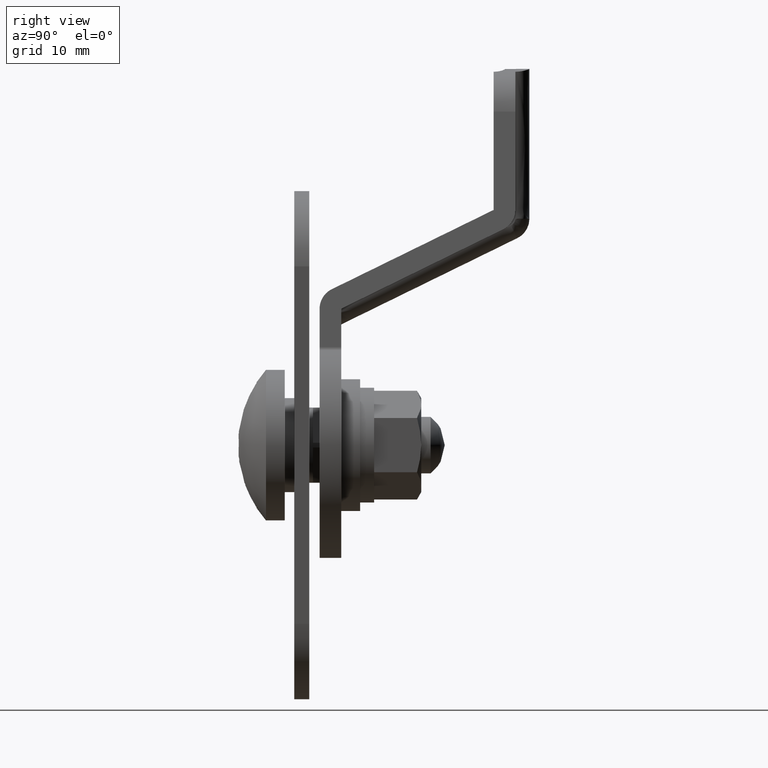
[diagram: clean part render]
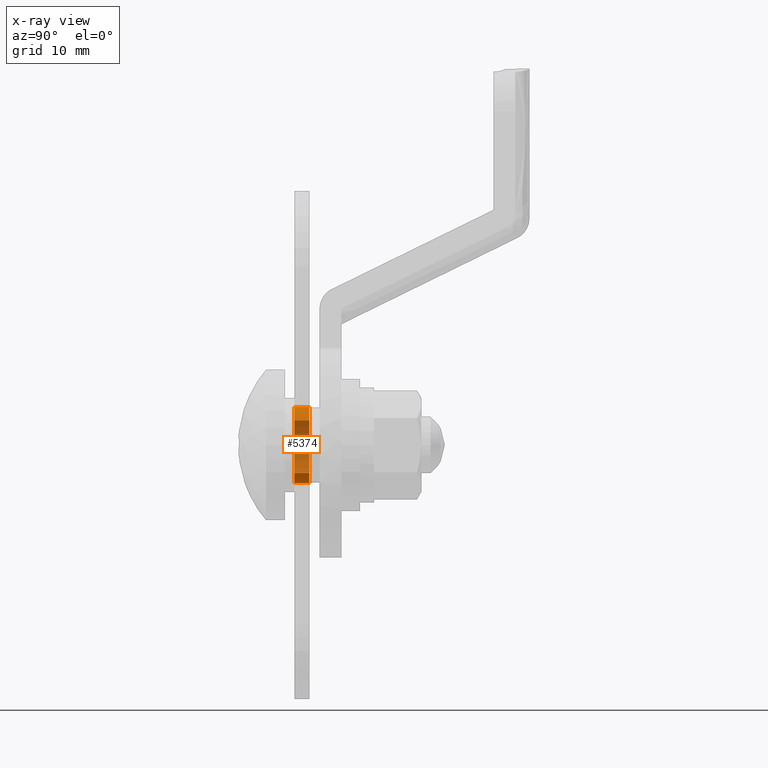
[diagram: x-ray — body ghosted, one internal face saturated and labeled with its STEP entity id]
A machine part, right view, then the same camera in x-ray: the body is ghosted and one INTERNAL B-rep face — a face not visible from any outside direction — is saturated and labeled: STEP entity #5374.
In plain terms, the highlighted face is a freeform B-spline surface patch.
Its self-contained STEP definition (entity closure, byte-faithful):
#5222=CARTESIAN_POINT('',(3.092400353908882,0.039999774999999,2.615255255447202));
#5223=CARTESIAN_POINT('',(3.017552872087634,0.039999774999999,2.703758424991023));
#5224=CARTESIAN_POINT('',(2.937766202599764,0.039999774999999,2.787836031559702));
#5225=CARTESIAN_POINT('',(0.149930171040061,0.039999774999999,5.725602234159466));
#5226=CARTESIAN_POINT('',(-2.787836031559702,0.039999774999999,2.937766202599764));
#5227=CARTESIAN_POINT('',(-5.725602234159466,0.039999774999999,0.149930171040061));
#5228=CARTESIAN_POINT('',(-2.937766202599764,0.039999774999999,-2.787836031559702));
#5229=CARTESIAN_POINT('',(-0.149930171040061,0.039999774999999,-5.725602234159466));
#5230=CARTESIAN_POINT('',(2.787836031559702,0.039999774999999,-2.937766202599764));
#5231=CARTESIAN_POINT('',(3.092400353908882,-1.640990769374965,2.615255255447202));
#5232=CARTESIAN_POINT('',(3.017552872087634,-1.640990769374965,2.703758424991023));
#5233=CARTESIAN_POINT('',(2.937766202599764,-1.640990769374964,2.787836031559702));
#5234=CARTESIAN_POINT('',(0.149930171040061,-1.640990769374964,5.725602234159466));
#5235=CARTESIAN_POINT('',(-2.787836031559702,-1.640990769374964,2.937766202599764));
#5236=CARTESIAN_POINT('',(-5.725602234159466,-1.640990769374964,0.149930171040061));
#5237=CARTESIAN_POINT('',(-2.937766202599764,-1.640990769374964,-2.787836031559702));
#5238=CARTESIAN_POINT('',(-0.149930171040061,-1.640990769374964,-5.725602234159466));
#5239=CARTESIAN_POINT('',(2.787836031559702,-1.640990769374964,-2.937766202599764));
#5247=(BOUNDED_SURFACE()B_SPLINE_SURFACE(2,1,((#5222,#5231),(#5223,#5232),(#5224,#5233),(#5225,#5234),(#5226,#5235),(#5227,#5236),(#5228,#5237),(#5229,#5238),(#5230,#5239)),.UNSPECIFIED.,.F.,.F.,.U.)B_SPLINE_SURFACE_WITH_KNOTS((3,2,2,2,3),(2,2),(0.0,0.268410388417766,6.978670098861904,13.688929809306041,20.399189519750180),(0.0,1.0),.UNSPECIFIED.)GEOMETRIC_REPRESENTATION_ITEM()RATIONAL_B_SPLINE_SURFACE(((0.977505800795127,0.977505800795127),(0.988284271247462,0.988284271247462),(1.0,1.0),(0.707106781186548,0.707106781186548),(1.0,1.0),(0.707106781186548,0.707106781186548),(1.0,1.0),(0.707106781186548,0.707106781186548),(1.0,1.0)))REPRESENTATION_ITEM('')SURFACE());
#5248=CARTESIAN_POINT('',(3.092400484543958,-1.599991000000631,2.615255344986193));
#5249=VERTEX_POINT('',#5248);
#5250=CARTESIAN_POINT('',(0.0,-1.599990999999965,4.050000000000000));
#5251=VERTEX_POINT('',#5250);
#5252=CARTESIAN_POINT('',(3.092400484543958,-1.599991000000631,2.615255344986193));
#5253=CARTESIAN_POINT('',(2.879450463511448,-1.599991000000588,2.867201637805676));
#5254=CARTESIAN_POINT('',(2.513455534628931,-1.599991000000501,3.205643752623646));
#5255=CARTESIAN_POINT('',(1.877003888556455,-1.599991000000373,3.607656000382701));
#5256=CARTESIAN_POINT('',(1.099462235144810,-1.599991000000200,3.943158492366766));
#5257=CARTESIAN_POINT('',(0.421533467174322,-1.599991000000055,4.050213329466186));
#5258=CARTESIAN_POINT('',(0.0,-1.599990999999965,4.050000000000000));
#5259=B_SPLINE_CURVE_WITH_KNOTS('',3,(#5252,#5253,#5254,#5255,#5256,#5257,#5258),.UNSPECIFIED.,.F.,.U.,(4,1,1,1,4),(0.000000023080737,0.989627527674797,1.484443801501332,2.254149022901001,3.518673672374912),.UNSPECIFIED.);
#5260=EDGE_CURVE('',#5249,#5251,#5259,.T.);
#5261=ORIENTED_EDGE('',*,*,#5260,.T.);
#5262=CARTESIAN_POINT('',(-4.049999999999949,-1.599990999999965,-0.000000639136269));
#5263=VERTEX_POINT('',#5262);
#5264=CARTESIAN_POINT('',(0.0,-1.599990999999965,4.050000000000000));
#5265=CARTESIAN_POINT('',(-0.314774181988511,-1.599990999999964,4.050062645675340));
#5266=CARTESIAN_POINT('',(-0.861454541847088,-1.599990999999967,3.985933744480716));
#5267=CARTESIAN_POINT('',(-1.603535380286522,-1.599990999999964,3.740766554754877));
#5268=CARTESIAN_POINT('',(-2.278139149217246,-1.599990999999965,3.380227175433728));
#5269=CARTESIAN_POINT('',(-2.870828241984392,-1.599990999999975,2.893817393189305));
#5270=CARTESIAN_POINT('',(-3.345502506040711,-1.599990999999957,2.315373141670689));
#5271=CARTESIAN_POINT('',(-3.660138199431569,-1.599990999999972,1.767776444814357));
#5272=CARTESIAN_POINT('',(-3.957708864991862,-1.599990999999964,1.010485527771871));
#5273=CARTESIAN_POINT('',(-4.050196407394374,-1.599990999999965,0.414203455855034));
#5274=CARTESIAN_POINT('',(-4.049999999999949,-1.599990999999965,-0.000000639136269));
#5275=B_SPLINE_CURVE_WITH_KNOTS('',3,(#5264,#5265,#5266,#5267,#5268,#5269,#5270,#5271,#5272,#5273,#5274),.UNSPECIFIED.,.F.,.U.,(4,1,1,1,1,1,1,1,4),(0.000000070980157,0.944313055946179,1.640143833672003,2.335974185389155,3.230562816715836,3.926395951291294,4.572516989498781,5.119233933469779,6.361765400877429),.UNSPECIFIED.);
#5276=EDGE_CURVE('',#5251,#5263,#5275,.T.);
#5277=ORIENTED_EDGE('',*,*,#5276,.T.);
#5278=CARTESIAN_POINT('',(0.0,-1.599990999999965,-4.050000000000000));
#5279=VERTEX_POINT('',#5278);
#5280=CARTESIAN_POINT('',(-4.049999999999949,-1.599990999999965,-0.000000639136269));
#5281=CARTESIAN_POINT('',(-4.050021377162549,-1.599990999999965,-0.265066795188676));
#5282=CARTESIAN_POINT('',(-3.989669675933455,-1.599990999999967,-0.878058234504779));
#5283=CARTESIAN_POINT('',(-3.706834513284169,-1.599990999999963,-1.717005494734092));
#5284=CARTESIAN_POINT('',(-3.191544699875011,-1.599990999999965,-2.553211640489213));
#5285=CARTESIAN_POINT('',(-2.588707740704343,-1.599990999999979,-3.156125099174831));
#5286=CARTESIAN_POINT('',(-1.889291668312245,-1.599990999999938,-3.604906772169243));
#5287=CARTESIAN_POINT('',(-1.076747036564646,-1.599990999999990,-3.947423221746329));
#5288=CARTESIAN_POINT('',(-0.414202610406967,-1.599990999999956,-4.050203531190827));
#5289=CARTESIAN_POINT('',(0.0,-1.599990999999965,-4.050000000000000));
#5290=B_SPLINE_CURVE_WITH_KNOTS('',3,(#5280,#5281,#5282,#5283,#5284,#5285,#5286,#5287,#5288,#5289),.UNSPECIFIED.,.F.,.U.,(4,1,1,1,1,1,1,4),(0.000000071200660,0.795207521116857,1.838952461712017,2.634173546756636,3.727595044182834,4.373706819607634,5.119233353555915,6.361764680417384),.UNSPECIFIED.);
#5291=EDGE_CURVE('',#5263,#5279,#5290,.T.);
#5292=ORIENTED_EDGE('',*,*,#5291,.T.);
#5293=CARTESIAN_POINT('',(2.787835964500129,-1.599990999996057,-2.937766046260736));
#5294=VERTEX_POINT('',#5293);
#5295=CARTESIAN_POINT('',(0.0,-1.599990999999965,-4.050000000000000));
#5296=CARTESIAN_POINT('',(0.272248477397850,-1.599990999999583,-4.050019538906583));
#5297=CARTESIAN_POINT('',(0.880813398071738,-1.599990999998729,-3.988456380367733));
#5298=CARTESIAN_POINT('',(1.859280489832357,-1.599990999997363,-3.657527662485564));
#5299=CARTESIAN_POINT('',(2.485911185358544,-1.599990999996477,-3.224517046621647));
#5300=CARTESIAN_POINT('',(2.787835964500129,-1.599990999996057,-2.937766046260736));
#5301=B_SPLINE_CURVE_WITH_KNOTS('',3,(#5295,#5296,#5297,#5298,#5299,#5300),.UNSPECIFIED.,.F.,.U.,(4,1,1,4),(0.000000018504035,0.816758172003964,1.825689168511334,3.074851836644841),.UNSPECIFIED.);
#5302=EDGE_CURVE('',#5279,#5294,#5301,.T.);
#5303=ORIENTED_EDGE('',*,*,#5302,.T.);
#5304=CARTESIAN_POINT('',(2.787835963978496,-3.816392E-017,-2.937766046755747));
#5305=VERTEX_POINT('',#5304);
#5306=CARTESIAN_POINT('',(2.787835963978496,-3.816392E-017,-2.937766046755747));
#5307=CARTESIAN_POINT('',(2.787835964500129,-1.599990999996057,-2.937766046260736));
#5308=QUASI_UNIFORM_CURVE('',1,(#5306,#5307),.UNSPECIFIED.,.F.,.U.);
#5309=EDGE_CURVE('',#5305,#5294,#5308,.T.);
#5310=ORIENTED_EDGE('',*,*,#5309,.F.);
#5311=CARTESIAN_POINT('',(0.0,0.0,-4.050000000000000));
#5312=VERTEX_POINT('',#5311);
#5313=CARTESIAN_POINT('',(0.0,0.0,-4.050000000000000));
#5314=CARTESIAN_POINT('',(0.272253420213466,-3.726997E-018,-4.050035358957848));
#5315=CARTESIAN_POINT('',(0.800723687741156,-1.096146E-017,-3.996515164486063));
#5316=CARTESIAN_POINT('',(1.523807770586072,-2.086008E-017,-3.775561085658335));
#5317=CARTESIAN_POINT('',(2.195650040537961,-3.005722E-017,-3.430455646749126));
#5318=CARTESIAN_POINT('',(2.590373199871209,-3.546076E-017,-3.125195706890925));
#5319=CARTESIAN_POINT('',(2.787835963978496,-3.816392E-017,-2.937766046755747));
#5320=B_SPLINE_CURVE_WITH_KNOTS('',3,(#5313,#5314,#5315,#5316,#5317,#5318,#5319),.UNSPECIFIED.,.F.,.U.,(4,1,1,1,4),(0.000000018503934,0.816758171812884,1.585458975373519,2.258093682626226,3.074851835925709),.UNSPECIFIED.);
#5321=EDGE_CURVE('',#5312,#5305,#5320,.T.);
#5322=ORIENTED_EDGE('',*,*,#5321,.F.);
#5323=CARTESIAN_POINT('',(-4.049999999999949,0.0,-0.000000639136269));
#5324=VERTEX_POINT('',#5323);
#5325=CARTESIAN_POINT('',(-4.049999999999949,0.0,-0.000000639136269));
#5326=CARTESIAN_POINT('',(-4.050021376331706,0.0,-0.265066795534037));
#5327=CARTESIAN_POINT('',(-3.989669680714064,0.0,-0.878058232517590));
#5328=CARTESIAN_POINT('',(-3.706834721637081,0.0,-1.717005726409069));
#5329=CARTESIAN_POINT('',(-3.191543116696939,0.0,-2.553209971952235));
#5330=CARTESIAN_POINT('',(-2.588713271870925,0.0,-3.156131041289702));
#5331=CARTESIAN_POINT('',(-1.931244431532019,0.0,-3.577970597366948));
#5332=CARTESIAN_POINT('',(-1.354159005704651,0.0,-3.833799018994144));
#5333=CARTESIAN_POINT('',(-0.712369413034660,0.0,-4.007168678469267));
#5334=CARTESIAN_POINT('',(-0.248505279746899,0.0,-4.050027765797061));
#5335=CARTESIAN_POINT('',(0.0,0.0,-4.050000000000000));
#5336=B_SPLINE_CURVE_WITH_KNOTS('',3,(#5325,#5326,#5327,#5328,#5329,#5330,#5331,#5332,#5333,#5334,#5335),.UNSPECIFIED.,.F.,.U.,(4,1,1,1,1,1,1,1,4),(0.000000071200660,0.795207521116857,1.838952461712017,2.634173546756636,3.727595044182834,4.373706819607634,4.970130585225387,5.616251550114034,6.361764680417384),.UNSPECIFIED.);
#5337=EDGE_CURVE('',#5324,#5312,#5336,.T.);
#5338=ORIENTED_EDGE('',*,*,#5337,.F.);
#5339=CARTESIAN_POINT('',(0.0,0.0,4.050000000000000));
#5340=VERTEX_POINT('',#5339);
#5341=CARTESIAN_POINT('',(0.0,0.0,4.050000000000000));
#5342=CARTESIAN_POINT('',(-0.314775949877943,0.0,4.050065615718139));
#5343=CARTESIAN_POINT('',(-0.811751106450958,0.0,3.991755221050467));
#5344=CARTESIAN_POINT('',(-1.477863989806134,0.0,3.785195708052762));
#5345=CARTESIAN_POINT('',(-2.063546391452511,0.0,3.508210826077874));
#5346=CARTESIAN_POINT('',(-2.730501069191906,0.0,3.038574155759377));
#5347=CARTESIAN_POINT('',(-3.287626349500232,0.0,2.416297529655298));
#5348=CARTESIAN_POINT('',(-3.660123961288653,0.0,1.767764134046351));
#5349=CARTESIAN_POINT('',(-3.957709548484447,0.0,1.010485467248601));
#5350=CARTESIAN_POINT('',(-4.050195774259096,0.0,0.414203425841813));
#5351=CARTESIAN_POINT('',(-4.049999999999949,0.0,-0.000000639136269));
#5352=B_SPLINE_CURVE_WITH_KNOTS('',3,(#5341,#5342,#5343,#5344,#5345,#5346,#5347,#5348,#5349,#5350,#5351),.UNSPECIFIED.,.F.,.U.,(4,1,1,1,1,1,1,1,4),(0.000000070980157,0.944313055946179,1.491037379591461,2.087454919917114,2.882697447464835,3.926395951291294,4.572516989498781,5.119233933469779,6.361765400877429),.UNSPECIFIED.);
#5353=EDGE_CURVE('',#5340,#5324,#5352,.T.);
#5354=ORIENTED_EDGE('',*,*,#5353,.F.);
#5355=CARTESIAN_POINT('',(3.092400484407597,-3.904214E-017,2.615255345147433));
#5356=VERTEX_POINT('',#5355);
#5357=CARTESIAN_POINT('',(3.092400484407597,-3.904214E-017,2.615255345147433));
#5358=CARTESIAN_POINT('',(2.879445038155224,-3.635354E-017,2.867189813343971));
#5359=CARTESIAN_POINT('',(2.405048314482408,-3.036419E-017,3.305983704955594));
#5360=CARTESIAN_POINT('',(1.664036896416400,-2.100878E-017,3.719585392466256));
#5361=CARTESIAN_POINT('',(0.861300591051766,-1.087408E-017,3.984680801022134));
#5362=CARTESIAN_POINT('',(0.329882615231386,-4.164830E-018,4.050087803102453));
#5363=CARTESIAN_POINT('',(0.0,0.0,4.050000000000000));
#5364=B_SPLINE_CURVE_WITH_KNOTS('',3,(#5357,#5358,#5359,#5360,#5361,#5362,#5363),.UNSPECIFIED.,.F.,.U.,(4,1,1,1,4),(0.000000023080694,0.989627527615385,1.924262439606654,2.529046167628894,3.518673672163740),.UNSPECIFIED.);
#5365=EDGE_CURVE('',#5356,#5340,#5364,.T.);
#5366=ORIENTED_EDGE('',*,*,#5365,.F.);
#5367=CARTESIAN_POINT('',(3.092400484407597,-3.904214E-017,2.615255345147433));
#5368=CARTESIAN_POINT('',(3.092400484543958,-1.599991000000631,2.615255344986193));
#5369=QUASI_UNIFORM_CURVE('',1,(#5367,#5368),.UNSPECIFIED.,.F.,.U.);
#5370=EDGE_CURVE('',#5356,#5249,#5369,.T.);
#5371=ORIENTED_EDGE('',*,*,#5370,.T.);
#5372=EDGE_LOOP('',(#5261,#5277,#5292,#5303,#5310,#5322,#5338,#5354,#5366,#5371));
#5373=FACE_OUTER_BOUND('',#5372,.T.);
#5374=ADVANCED_FACE('',(#5373),#5247,.F.);